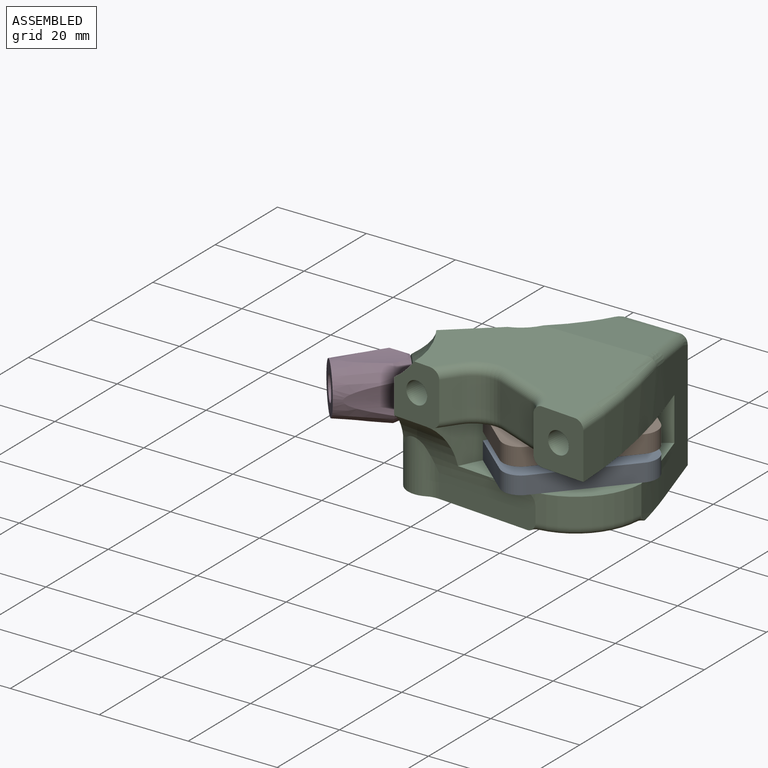
[diagram: assembled view]
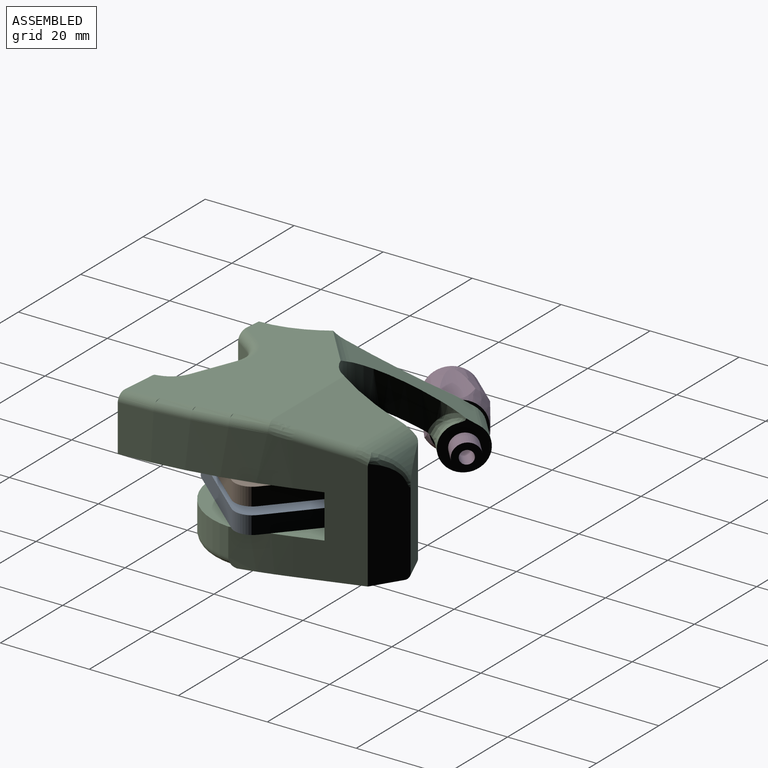
[diagram: assembled view, second angle]
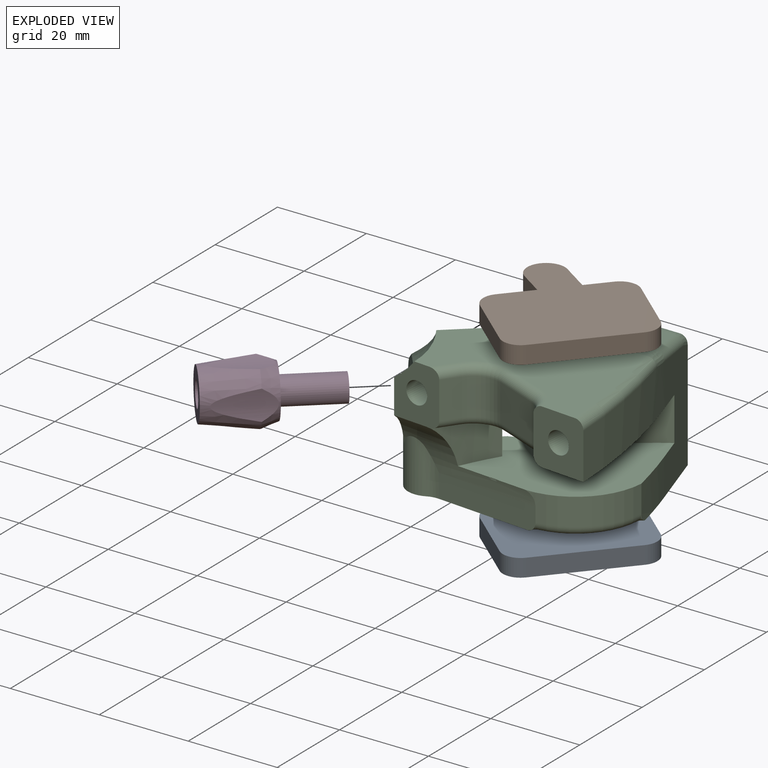
[diagram: exploded view]
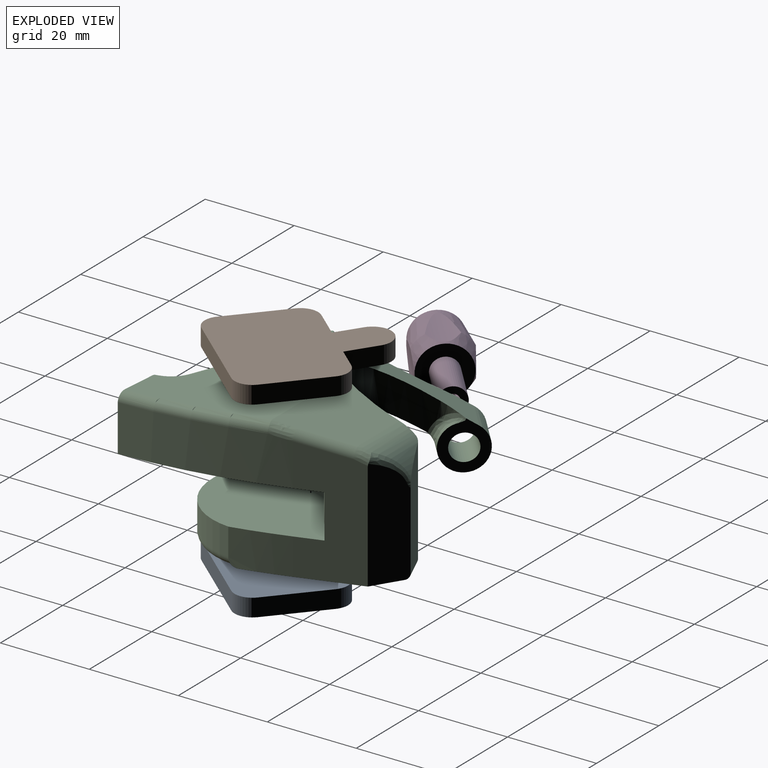
[diagram: exploded view, second angle]
ASSEMBLY  parts=4 mates=3
PART A: 14 faces, bbox 35x34.8x4 mm
  f0: plane 5.3x4mm, normal (-0.55,-0.83,0), area 25.4mm2, adj f2,f3,f12,f13
  f1: plane 6.21x4.12mm, normal (0.55,0.83,0), area 29.8mm2, adj f2,f3,f4,f13
  f2: cylinder r=4.24mm len=7.78mm, axis (0,0,-1), area 53.3mm2, adj f0,f1,f3,f13
  f3: plane 35.02x34.75mm, normal (0,0,-1), area 770mm2, adj f0,f1,f2,f4,f5,f6,f7,f8
  f4: plane 4.64x4.02mm, normal (-0.76,0.65,0), area 24.6mm2, adj f1,f3,f11,f13
  f5: cylinder r=4mm len=5.64mm, axis (0,0,1), area 25.1mm2, adj f3,f6,f10,f13
  f6: plane 11.18x9.68mm, normal (0.65,0.76,0), area 59.2mm2, adj f3,f5,f11,f13
  f7: cylinder r=4mm len=5.64mm, axis (0,0,1), area 25.1mm2, adj f3,f8,f12,f13
  f8: plane 11.18x9.68mm, normal (-0.65,-0.76,0), area 59.2mm2, adj f3,f7,f9,f13
  f9: cylinder r=4mm len=5.64mm, axis (0,0,1), area 25.1mm2, adj f3,f8,f10,f13
  f10: plane 17.07x14.78mm, normal (0.76,-0.65,0), area 90.3mm2, adj f3,f5,f9,f13
  f11: cylinder r=4mm len=5.64mm, axis (0,0,1), area 25.1mm2, adj f3,f4,f6,f13
  f12: plane 5.96x5.16mm, normal (-0.76,0.65,0), area 31.5mm2, adj f0,f3,f7,f13
  f13: plane 35.02x34.75mm, normal (0,0,1), area 770mm2, adj f0,f1,f2,f4,f5,f6,f7,f8
PART B: 14 faces, bbox 35x34.8x4 mm
  f0: plane 5.3x4mm, normal (-0.55,-0.83,0), area 25.4mm2, adj f2,f3,f12,f13
  f1: plane 6.21x4.12mm, normal (0.55,0.83,0), area 29.8mm2, adj f2,f3,f4,f13
  f2: cylinder r=4.24mm len=7.78mm, axis (0,0,-1), area 53.3mm2, adj f0,f1,f3,f13
  f3: plane 35.02x34.75mm, normal (0,0,-1), area 770mm2, adj f0,f1,f2,f4,f5,f6,f7,f8
  f4: plane 4.64x4.02mm, normal (-0.76,0.65,0), area 24.6mm2, adj f1,f3,f11,f13
  f5: cylinder r=4mm len=5.64mm, axis (0,0,1), area 25.1mm2, adj f3,f6,f10,f13
  f6: plane 11.18x9.68mm, normal (0.65,0.76,0), area 59.2mm2, adj f3,f5,f11,f13
  f7: cylinder r=4mm len=5.64mm, axis (0,0,1), area 25.1mm2, adj f3,f8,f12,f13
  f8: plane 11.18x9.68mm, normal (-0.65,-0.76,0), area 59.2mm2, adj f3,f7,f9,f13
  f9: cylinder r=4mm len=5.64mm, axis (0,0,1), area 25.1mm2, adj f3,f8,f10,f13
  f10: plane 17.07x14.78mm, normal (0.76,-0.65,0), area 90.3mm2, adj f3,f5,f9,f13
  f11: cylinder r=4mm len=5.64mm, axis (0,0,1), area 25.1mm2, adj f3,f4,f6,f13
  f12: plane 5.96x5.16mm, normal (-0.76,0.65,0), area 31.5mm2, adj f0,f3,f7,f13
  f13: plane 35.02x34.75mm, normal (0,0,1), area 770mm2, adj f0,f1,f2,f4,f5,f6,f7,f8
PART C: 105 faces, bbox 68x55.3x38.9 mm
  f0: plane 3.5x2.14mm, normal (0.96,-0.27,0), area 7.8mm2, adj f1,f5,f6,f7
  f1: plane 3.5x1.59mm, normal (0.72,0.7,0), area 7.8mm2, adj f0,f2,f5,f7
  f2: plane 3.5x2.15mm, normal (-0.25,0.97,0), area 7.8mm2, adj f1,f3,f5,f7
  f3: plane 3.5x2.14mm, normal (-0.96,0.27,0), area 7.8mm2, adj f2,f4,f5,f7
  f4: plane 3.5x1.59mm, normal (-0.72,-0.7,0), area 7.8mm2, adj f3,f5,f6,f7
  f5: plane 4.31x4.28mm, normal (0,0,-1), area 12.8mm2, adj f0,f1,f2,f3,f4,f6
  f6: plane 3.5x2.15mm, normal (0.25,-0.97,0), area 7.8mm2, adj f0,f4,f5,f7
  f7: plane 6.8x6.8mm, normal (0,0,-1), area 23.5mm2, adj f0,f1,f2,f3,f4,f6,f8
  f8: torus R=3.4mm, axis (0,0,-1), area 18.3mm2, adj f7,f9
  f9: cylinder r=3.9mm len=7.8mm, axis (0,0,-1), area 105.4mm2, adj f8,f10
  f10: plane 8x8mm, normal (0,0,-1), area 2.5mm2, adj f9,f11
  f11: cylinder r=4mm len=8mm, axis (0,0,-1), area 125.7mm2, adj f10,f12
  f12: plane 46.16x44.01mm, normal (0,0,-1), area 1045.5mm2, adj f11,f13,f89,f90,f91,f92,f94,f95
  f13: cylinder r=130.22mm len=12.17mm, axis (0,0,1), area 101.5mm2, adj f12,f14,f82,f89,f104
  f14: cylinder r=15.59mm len=15.91mm, axis (0,0,1), area 136.8mm2, adj f13,f15,f82,f101,f103
  f15: cylinder r=15mm len=31.62mm, axis (-1,0.08,0), area 175.7mm2, adj f14,f16,f17,f77,f80,f82,f99,f100
  f16: cylinder r=6mm len=2.37mm, axis (0,0,1), area 0mm2, adj f15,f82
  f17: cylinder r=70mm len=14.68mm, axis (0,0,-1), area 124.4mm2, adj f15,f18,f74,f82
  f18: plane 9.97x8.66mm, normal (0.65,0.76,0), area 91.5mm2, adj f17,f19,f73,f74,f82,f97
  f19: cylinder r=9.15mm len=13.64mm, axis (0,0,1), area 123mm2, adj f18,f20,f25,f39,f41,f42,f71,f72
  f20: cylinder r=3mm len=5.07mm, axis (0,0,-1), area 24.2mm2, adj f19,f21,f72,f74
  f21: plane 4x0.86mm, normal (-0.53,-0.85,0), area 4.1mm2, adj f20,f22,f72,f74
  f22: cylinder r=2.77mm len=5.11mm, axis (0,0,1), area 34.8mm2, adj f21,f23,f72,f74
  f23: plane 4x0.06mm, normal (0.53,0.85,0), area 0.3mm2, adj f22,f24,f72,f74
  f24: cylinder r=3mm len=4.47mm, axis (0,0,1), area 22.2mm2, adj f23,f72,f74,f95
  f25: cylinder r=23.28mm len=17.04mm, axis (0,0,1), area 137.9mm2, adj f19,f26,f32,f33,f37,f38,f39,f73
  f26: bspline ~6.3x4.22mm, area 13.4mm2, adj f25,f27,f28,f38
  f27: bspline ~5.36x2.74mm, area 8.7mm2, adj f26,f28,f32,f39
  f28: plane 11.75x8.54mm, normal (0.75,0.66,0), area 54.3mm2, adj f26,f27,f29,f31,f39
  f29: cylinder r=3mm len=10.38mm, axis (0.75,0.66,0), area 161.1mm2, adj f28,f30,f80
  f30: plane 11.66x4.39mm, normal (-0.75,-0.66,0), area 31.7mm2, adj f29,f31,f39,f80
  f31: cylinder r=5.1mm len=13.36mm, axis (-0.75,-0.66,0), area 176.1mm2, adj f28,f30,f38,f39,f80
  f32: cylinder r=9.54mm len=3.24mm, axis (0,0,1), area 5.8mm2, adj f25,f27,f39
  f33: cylinder r=7.07mm len=5.32mm, axis (-0.75,-0.66,0), area 8.2mm2, adj f25,f34,f37,f73
  f34: bspline ~7.06x5.45mm, area 22.9mm2, adj f33,f35,f36,f99
  f35: sphere r=5mm, area 12.3mm2, adj f34,f73,f98
  f36: bspline ~11.88x11.18mm, area 68.5mm2, adj f34,f37,f80,f99
  f37: plane 11.48x9.71mm, normal (0.36,-0.41,-0.84), area 60.1mm2, adj f25,f33,f36,f38,f80
  f38: cylinder r=4.62mm len=7.99mm, axis (-0.75,-0.66,0), area 30.7mm2, adj f25,f26,f31,f37,f80
  f39: plane 25.77x23.08mm, normal (-0.36,0.41,0.84), area 193.9mm2, adj f19,f25,f27,f28,f30,f31,f32,f40
  f40: revolved ~31.89x29.58mm, area 270.4mm2, adj f39,f41,f42,f77,f80
  f41: cylinder r=10mm len=11.31mm, axis (-0.75,-0.66,0), area 32.2mm2, adj f19,f39,f40,f42
  f42: plane 43.5x30.35mm, normal (0,0,1), area 838mm2, adj f19,f40,f41,f43,f53,f66,f67,f68
  f43: torus R=128.22mm, axis (0,0,1), area 96.2mm2, adj f42,f44,f52,f53,f71
  f44: bspline ~5.1x3.37mm, area 15.2mm2, adj f43,f45,f52,f71
  f45: cylinder r=2mm len=11.42mm, axis (0.3,-0.94,0.18), area 35.8mm2, adj f44,f46,f71,f89
  f46: bspline ~3.5x3.07mm, area 8.7mm2, adj f45,f47,f51,f89,f90
  f47: cylinder r=9.16mm len=13.31mm, axis (-1,0,0), area 87.5mm2, adj f46,f48,f49,f51,f71,f95
  f48: cylinder r=1.31mm len=24.79mm, axis (0,0,1), area 37.2mm2, adj f47,f49,f92,f95
  f49: plane 25.31x7.53mm, normal (-0.39,0.92,0), area 140.9mm2, adj f47,f48,f50,f90,f91
  f50: bspline ~1.7x1.06mm, area 0.6mm2, adj f49,f51,f90
  f51: bspline ~7.55x7mm, area 17.4mm2, adj f46,f47,f50,f90
  f52: cylinder r=130.22mm len=34.97mm, axis (0,0,1), area 368.5mm2, adj f43,f44,f53,f74,f89
  f53: plane 12.68x12.21mm, normal (-0.08,-1,0), area 126.2mm2, adj f42,f43,f52,f54,f56,f65,f66,f74
  f54: cylinder r=2.5mm len=6.4mm, axis (0.08,1,0), area 94.2mm2, adj f53,f55
  f55: plane 5x4.98mm, normal (-0.08,-1,0), area 19.6mm2, adj f54
  f56: plane 8.4x0.38mm, normal (-0.97,-0.24,0), area 3.3mm2, adj f53,f57,f65,f66
  f57: cylinder r=5mm len=8.4mm, axis (0,0,1), area 40mm2, adj f56,f58,f64,f67
  f58: torus R=7mm, axis (0,0,-1), area 17.2mm2, adj f57,f59,f65,f74
  f59: cylinder r=2mm len=10.48mm, axis (0.93,-0.37,0), area 32.9mm2, adj f58,f60,f64,f74
  f60: torus R=8mm, axis (0,0,-1), area 28.3mm2, adj f59,f61,f63,f74
  f61: cylinder r=2mm len=5.73mm, axis (0.57,0.82,0), area 15.8mm2, adj f60,f62,f74,f77
  f62: plane 8.4x3.64mm, normal (0.82,-0.57,0), area 37.3mm2, adj f61,f63,f70,f77
  f63: cylinder r=6mm len=8.4mm, axis (0,0,1), area 67.5mm2, adj f60,f62,f64,f69
  f64: plane 9.74x8.4mm, normal (-0.37,-0.93,0), area 88mm2, adj f57,f59,f63,f68
  f65: cylinder r=2mm len=2.2mm, axis (0.24,-0.97,0), area 2.3mm2, adj f53,f56,f58,f74
  f66: cylinder r=2mm len=2.2mm, axis (0.24,-0.97,0), area 2.3mm2, adj f42,f53,f56,f67
  f67: torus R=7mm, axis (0,0,-1), area 17.2mm2, adj f42,f57,f66,f68
  f68: cylinder r=2mm len=10.48mm, axis (0.93,-0.37,0), area 32.9mm2, adj f42,f64,f67,f69
  f69: torus R=8mm, axis (0,0,-1), area 28.3mm2, adj f42,f63,f68,f70
  f70: cylinder r=2mm len=5.73mm, axis (0.57,0.82,0), area 15.8mm2, adj f42,f62,f69,f77
  f71: plane 23.34x15.95mm, normal (0,0.19,0.98), area 287.7mm2, adj f19,f42,f43,f44,f45,f47,f95
  f72: plane 11.98x8.76mm, normal (0,0,1), area 42.6mm2, adj f19,f20,f21,f22,f23,f24,f95
  f73: cylinder r=5mm len=6.65mm, axis (0.75,0.66,0), area 30.2mm2, adj f18,f19,f25,f33,f35,f97
  f74: plane 44.69x39.24mm, normal (0,0,-1), area 1007.7mm2, adj f17,f18,f19,f20,f21,f22,f23,f24
  f75: cylinder r=70mm len=9.8mm, axis (0,0,-1), area 82.5mm2, adj f74,f76,f82,f89
  f76: plane 10.22x9.8mm, normal (-0.65,-0.76,0), area 132mm2, adj f74,f75,f82,f95
  f77: plane 12.89x11.27mm, normal (-0.08,-1,0), area 100.2mm2, adj f15,f40,f42,f61,f62,f70,f74,f78
  f78: cylinder r=2.5mm len=6.4mm, axis (0.08,1,0), area 94.2mm2, adj f77,f79
  f79: plane 5x4.98mm, normal (-0.08,-1,0), area 19.6mm2, adj f78
  f80: cylinder r=82.44mm len=28.93mm, axis (0,0,1), area 163.4mm2, adj f15,f29,f30,f31,f36,f37,f38,f40
  f81: bspline ~5.02x2.34mm, area 5.5mm2, adj f80,f99
  f82: plane 36.35x34.43mm, normal (0,0,1), area 844.9mm2, adj f13,f14,f15,f16,f17,f18,f75,f76
  f83: cylinder r=3mm len=4.47mm, axis (0,0,1), area 22.2mm2, adj f82,f84,f88,f95
  f84: plane 11.98x8.76mm, normal (0,0,-1), area 42.6mm2, adj f83,f85,f86,f87,f88,f95,f96
  f85: cylinder r=3mm len=5.07mm, axis (0,0,-1), area 24.2mm2, adj f82,f84,f86,f96
  f86: plane 4x0.86mm, normal (-0.53,-0.85,0), area 4.1mm2, adj f82,f84,f85,f87
  f87: cylinder r=2.77mm len=5.11mm, axis (0,0,-1), area 34.8mm2, adj f82,f84,f86,f88
  f88: plane 4x0.06mm, normal (0.53,0.85,0), area 0.3mm2, adj f82,f83,f84,f87
  f89: plane 27.53x13.76mm, normal (0.95,0.31,0), area 318.8mm2, adj f12,f13,f45,f46,f52,f74,f75,f82
  f90: plane 25.55x7.91mm, normal (0.53,0.85,0), area 195.3mm2, adj f12,f46,f49,f50,f51,f89,f91
  f91: cylinder r=1mm len=6.99mm, axis (-0.92,-0.39,0), area 10.7mm2, adj f12,f49,f90,f92
  f92: torus R=0.31mm, axis (0,0,1), area 1.7mm2, adj f12,f48,f91,f93,f94
  f93: revolved ~1.33x1.29mm, area 0.4mm2, adj f92,f95
  f94: revolved ~1.06x1mm, area 0.3mm2, adj f12,f92,f95
  f95: cylinder r=47.67mm len=30.38mm, axis (0,0,1), area 353.9mm2, adj f12,f19,f24,f47,f48,f71,f72,f74
  f96: cylinder r=9.15mm len=8.2mm, axis (0,0,1), area 37.6mm2, adj f12,f82,f84,f85,f95,f97
  f97: plane 12.45x5.67mm, normal (-0.66,0.75,0), area 80.4mm2, adj f12,f18,f73,f82,f96,f98
  f98: cylinder r=5mm len=12.45mm, axis (0,0,1), area 48.3mm2, adj f12,f35,f97,f99
  f99: cylinder r=5mm len=17.1mm, axis (0,0,1), area 232.8mm2, adj f12,f15,f34,f36,f80,f81,f98,f100
  f100: cylinder r=5mm len=9.83mm, axis (0,0,-1), area 20.2mm2, adj f12,f15,f99,f101
  f101: plane 23.08x5.31mm, normal (-0.08,-1,0), area 122.2mm2, adj f12,f14,f15,f100,f102
  f102: revolved ~2x1.99mm, area 3.1mm2, adj f12,f101,f103
  f103: torus R=13.59mm, axis (0,0,-1), area 64.6mm2, adj f12,f14,f102,f104
  f104: revolved ~4x3.99mm, area 5.1mm2, adj f12,f13,f103
PART D: 13 faces, bbox 26.7x24.9x13.9 mm
  f0: cylinder r=1.5mm len=14.48mm, axis (0.75,0.66,0), area 156.5mm2, adj f2,f4
  f1: cylinder r=3mm len=13.74mm, axis (0.75,0.66,0), area 245mm2, adj f2,f12
  f2: plane 6x4.52mm, normal (0.75,0.66,0), area 21.2mm2, adj f0,f1
  f3: cylinder r=2.75mm len=12.21mm, axis (0.75,0.66,0), area 197mm2, adj f4,f11
  f4: plane 5.5x4.14mm, normal (-0.75,-0.66,0), area 16.7mm2, adj f0,f3
  f5: cylinder r=19.61mm len=11.64mm, axis (0.75,0.66,0), area 42.3mm2, adj f8,f10
  f6: cylinder r=19.61mm len=7.39mm, axis (0.75,0.66,0), area 42.4mm2, adj f8,f10
  f7: cylinder r=19.61mm len=14.05mm, axis (0.75,0.66,0), area 43.3mm2, adj f8,f10
  f8: cone r=6.96mm half-angle=7deg, axis (0.75,0.66,0), area 289.2mm2, adj f5,f6,f7,f9,f10,f11
  f9: cylinder r=19.61mm len=7.39mm, axis (0.75,0.66,0), area 42.3mm2, adj f8,f10
  f10: cone r=5.65mm half-angle=20deg, axis (-0.75,-0.66,0), area 89.5mm2, adj f5,f6,f7,f8,f9,f12
  f11: plane 11.13x8.39mm, normal (-0.75,-0.66,0), area 73.5mm2, adj f3,f8
  f12: plane 11.31x8.52mm, normal (0.75,0.66,0), area 72.2mm2, adj f1,f10
PLACE A t=(6.78,-50.6,-16.04)mm
PLACE B t=(6.78,-50.6,-16.04)mm
PLACE C t=(6.78,-50.6,-16.04)mm fixed
PLACE D t=(6.71,-50.65,-16.04)mm
MATE fastened B.f2 <-> C.f87  axis (0,0,1) through (-3.16,-0.58,1.96)mm
MATE fastened D.f1 <-> C.f31  axis (0.75,0.66,0) through (-32.78,-1.79,-7.54)mm
MATE fastened A.f2 <-> C.f87  axis (0,0,-1) through (-3.16,-0.58,-7.84)mm
